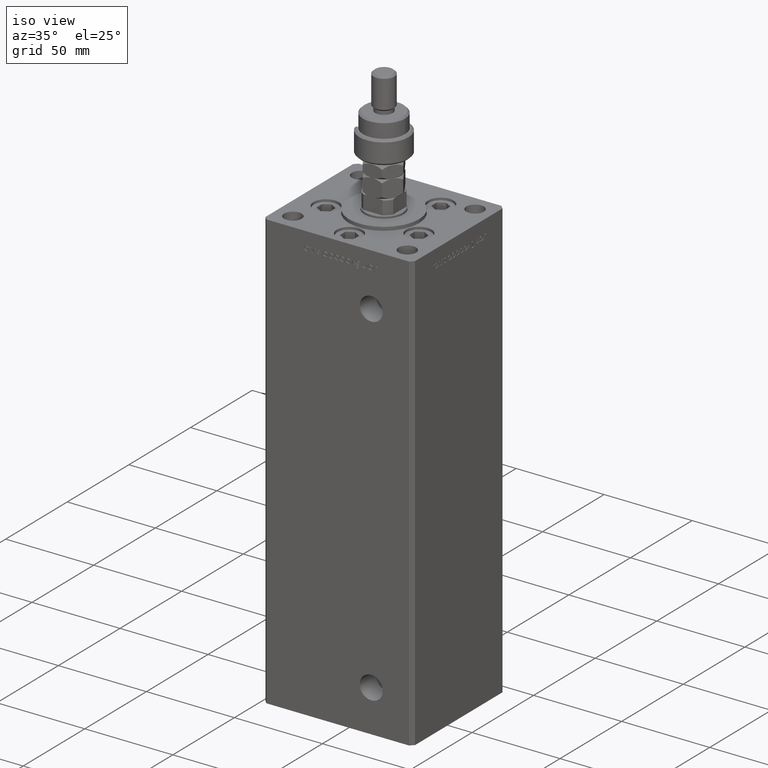
[diagram: clean part render]
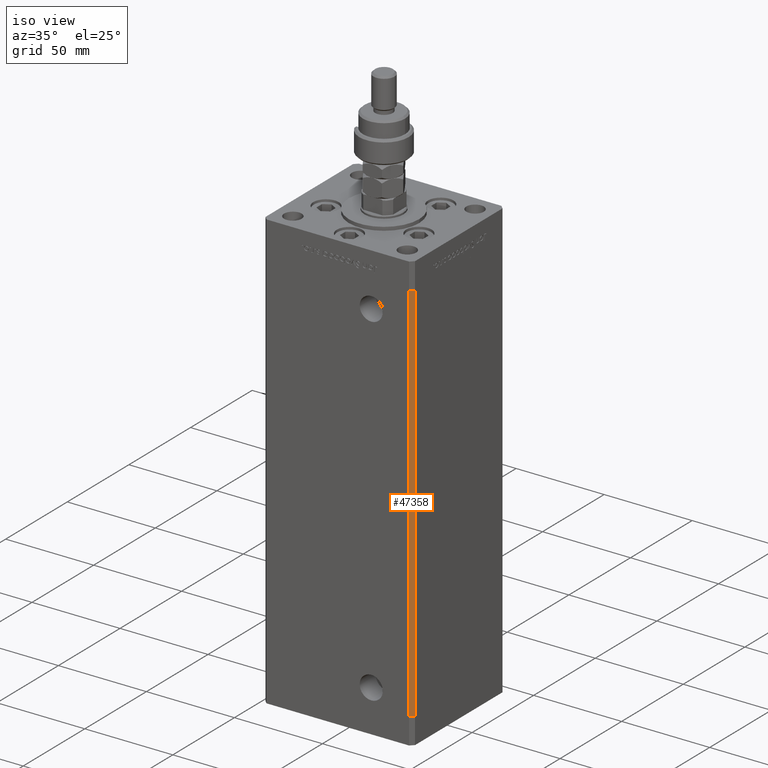
[diagram: same view with one face highlighted and labeled with its STEP entity id]
A machine part, iso view. The second image highlights one B-rep face of the part: STEP entity #47358.
In plain terms, the highlighted planar face has unit normal (0.7071, -0.7071, 0).
Its self-contained STEP definition (entity closure, byte-faithful):
#1129 = CARTESIAN_POINT ( 'NONE',  ( 42.49999999999998579, -35.50000000000000711, 0.000000000000000000 ) ) ;
#1224 = DIRECTION ( 'NONE',  ( -0.000000000000000000, -0.000000000000000000, -1.000000000000000000 ) ) ;
#1885 = PLANE ( 'NONE',  #45867 ) ;
#5507 = CARTESIAN_POINT ( 'NONE',  ( 42.49999999999998579, -35.50000000000000711, 218.5000000000000000 ) ) ;
#5868 = VECTOR ( 'NONE', #45307, 1000.000000000000000 ) ;
#6602 = ORIENTED_EDGE ( 'NONE', *, *, #21799, .T. ) ;
#8625 = EDGE_LOOP ( 'NONE', ( #17142, #23110, #31891, #6602 ) ) ;
#14166 = LINE ( 'NONE', #36948, #5868 ) ;
#14548 = VERTEX_POINT ( 'NONE', #27899 ) ;
#15994 = CARTESIAN_POINT ( 'NONE',  ( 42.49999999999998579, -35.50000000000000711, 0.000000000000000000 ) ) ;
#16201 = CARTESIAN_POINT ( 'NONE',  ( 40.49999999999998579, -37.50000000000000711, 0.000000000000000000 ) ) ;
#16706 = VERTEX_POINT ( 'NONE', #16201 ) ;
#17142 = ORIENTED_EDGE ( 'NONE', *, *, #48350, .F. ) ;
#17252 = LINE ( 'NONE', #20338, #54260 ) ;
#20338 = CARTESIAN_POINT ( 'NONE',  ( 42.49999999999998579, -35.50000000000000711, 218.5000000000000000 ) ) ;
#21799 = EDGE_CURVE ( 'NONE', #14548, #16706, #33050, .T. ) ;
#23110 = ORIENTED_EDGE ( 'NONE', *, *, #45351, .F. ) ;
#23311 = DIRECTION ( 'NONE',  ( 0.7071067811865475727, -0.7071067811865475727, 0.000000000000000000 ) ) ;
#27471 = EDGE_CURVE ( 'NONE', #49679, #14548, #17252, .T. ) ;
#27899 = CARTESIAN_POINT ( 'NONE',  ( 40.49999999999998579, -37.50000000000000711, 218.5000000000000000 ) ) ;
#28858 = CARTESIAN_POINT ( 'NONE',  ( 40.49999999999998579, -37.50000000000000711, 218.5000000000000000 ) ) ;
#29241 = DIRECTION ( 'NONE',  ( -0.7071067811865474617, -0.7071067811865474617, 0.000000000000000000 ) ) ;
#31003 = CARTESIAN_POINT ( 'NONE',  ( 42.49999999999998579, -35.50000000000000711, 218.5000000000000000 ) ) ;
#31115 = FACE_OUTER_BOUND ( 'NONE', #8625, .T. ) ;
#31891 = ORIENTED_EDGE ( 'NONE', *, *, #27471, .T. ) ;
#33050 = LINE ( 'NONE', #28858, #52332 ) ;
#33352 = VECTOR ( 'NONE', #39278, 1000.000000000000114 ) ;
#36948 = CARTESIAN_POINT ( 'NONE',  ( 42.49999999999998579, -35.50000000000000711, 218.5000000000000000 ) ) ;
#39278 = DIRECTION ( 'NONE',  ( -0.7071067811865474617, -0.7071067811865474617, 0.000000000000000000 ) ) ;
#44682 = VERTEX_POINT ( 'NONE', #15994 ) ;
#45307 = DIRECTION ( 'NONE',  ( -0.000000000000000000, -0.000000000000000000, -1.000000000000000000 ) ) ;
#45351 = EDGE_CURVE ( 'NONE', #49679, #44682, #14166, .T. ) ;
#45867 = AXIS2_PLACEMENT_3D ( 'NONE', #5507, #23311, #51979 ) ;
#47358 = ADVANCED_FACE ( 'NONE', ( #31115 ), #1885, .T. ) ;
#48350 = EDGE_CURVE ( 'NONE', #44682, #16706, #52339, .T. ) ;
#49679 = VERTEX_POINT ( 'NONE', #31003 ) ;
#51979 = DIRECTION ( 'NONE',  ( 0.7071067811865474617, 0.7071067811865474617, 0.000000000000000000 ) ) ;
#52332 = VECTOR ( 'NONE', #1224, 1000.000000000000000 ) ;
#52339 = LINE ( 'NONE', #1129, #33352 ) ;
#54260 = VECTOR ( 'NONE', #29241, 1000.000000000000114 ) ;